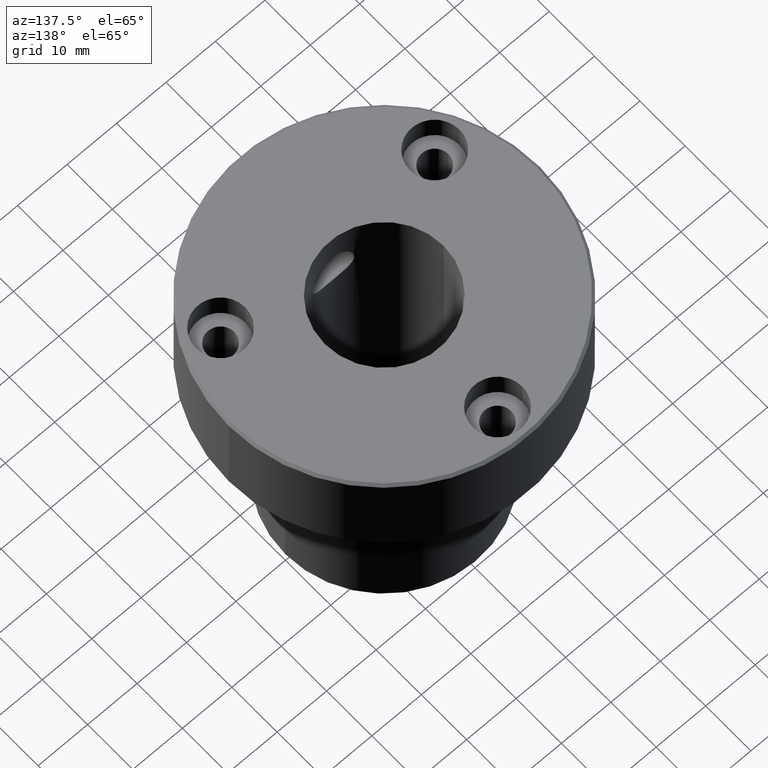
[diagram: clean part render]
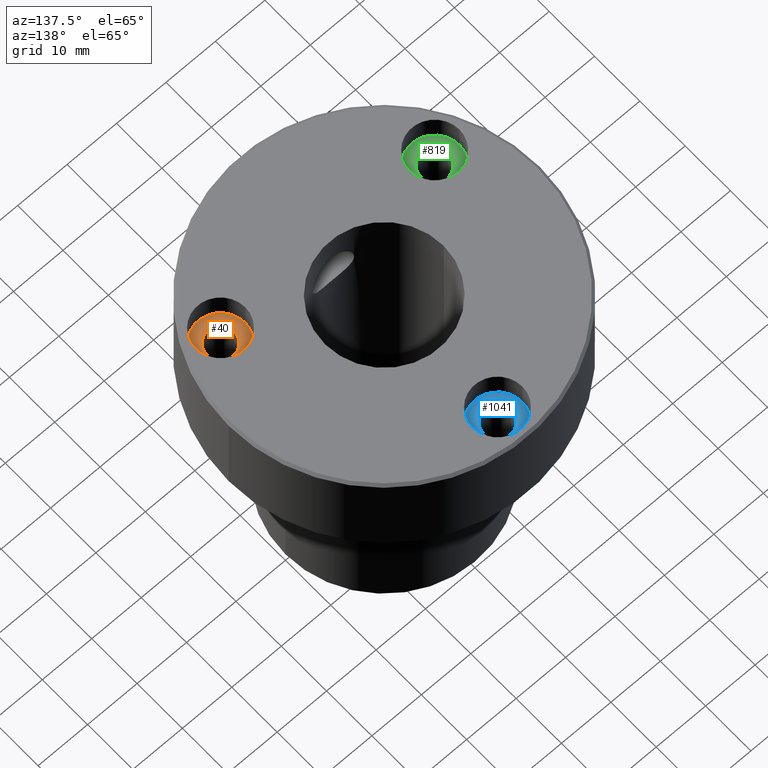
[diagram: same view with three faces highlighted in distinct colors, each labeled with its STEP entity id]
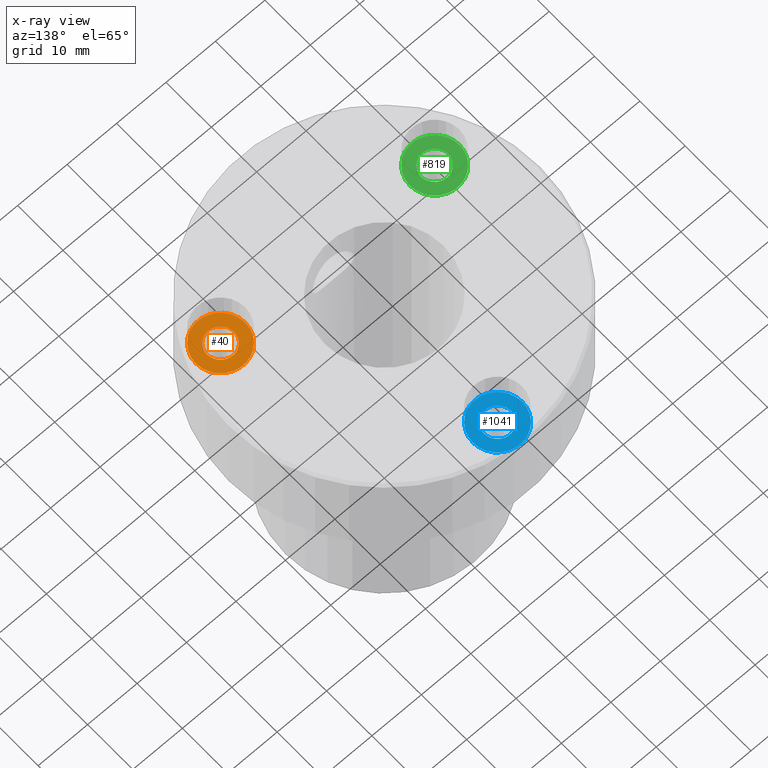
[diagram: x-ray of the same camera — body ghosted, the three highlighted faces saturated]
A machine part, auxiliary view with three faces highlighted in distinct colors.
The next image is the same camera in x-ray (body ghosted, the three faces saturated) — at least one of them is partly hidden behind the body in this view.
Their STEP definitions:

[orange] entity #40 — the highlighted planar face has unit normal (0, 0, -1).
#40 = ADVANCED_FACE ( 'NONE', ( #1101, #1032 ), #657, .F. ) ;
#49 = DIRECTION ( 'NONE',  ( -0.000000000000000000, -0.000000000000000000, 1.000000000000000000 ) ) ;
#51 = AXIS2_PLACEMENT_3D ( 'NONE', #177, #914, #245 ) ;
#177 = CARTESIAN_POINT ( 'NONE',  ( 24.40063509461092295, -12.50000000000010125, -5.400000000000000355 ) ) ;
#199 = AXIS2_PLACEMENT_3D ( 'NONE', #474, #849, #860 ) ;
#245 = DIRECTION ( 'NONE',  ( -1.000000000000000000, 0.000000000000000000, -0.000000000000000000 ) ) ;
#250 = DIRECTION ( 'NONE',  ( -0.000000000000000000, -0.000000000000000000, 1.000000000000000000 ) ) ;
#304 = CIRCLE ( 'NONE', #1007, 4.999999999999997335 ) ;
#307 = CARTESIAN_POINT ( 'NONE',  ( 21.65063509461091940, -12.50000000000010125, -5.400000000000000355 ) ) ;
#413 = VERTEX_POINT ( 'NONE', #956 ) ;
#438 = CARTESIAN_POINT ( 'NONE',  ( 16.65063509461091940, -12.50000000000010125, -5.400000000000000355 ) ) ;
#439 = DIRECTION ( 'NONE',  ( 1.000000000000000000, 0.000000000000000000, 0.000000000000000000 ) ) ;
#472 = EDGE_LOOP ( 'NONE', ( #938, #1087 ) ) ;
#474 = CARTESIAN_POINT ( 'NONE',  ( 21.65063509461091940, -12.50000000000010125, -5.400000000000000355 ) ) ;
#517 = CIRCLE ( 'NONE', #199, 2.750000000000005773 ) ;
#533 = EDGE_CURVE ( 'NONE', #837, #934, #622, .T. ) ;
#569 = ORIENTED_EDGE ( 'NONE', *, *, #736, .F. ) ;
#622 = CIRCLE ( 'NONE', #643, 4.999999999999997335 ) ;
#640 = VERTEX_POINT ( 'NONE', #1030 ) ;
#643 = AXIS2_PLACEMENT_3D ( 'NONE', #726, #49, #1084 ) ;
#657 = PLANE ( 'NONE',  #51 ) ;
#682 = CIRCLE ( 'NONE', #944, 2.750000000000005773 ) ;
#685 = EDGE_CURVE ( 'NONE', #413, #640, #682, .T. ) ;
#710 = EDGE_LOOP ( 'NONE', ( #1219, #569 ) ) ;
#726 = CARTESIAN_POINT ( 'NONE',  ( 21.65063509461091940, -12.50000000000010125, -5.400000000000000355 ) ) ;
#736 = EDGE_CURVE ( 'NONE', #640, #413, #517, .T. ) ;
#837 = VERTEX_POINT ( 'NONE', #1169 ) ;
#848 = EDGE_CURVE ( 'NONE', #934, #837, #304, .T. ) ;
#849 = DIRECTION ( 'NONE',  ( -0.000000000000000000, -0.000000000000000000, 1.000000000000000000 ) ) ;
#860 = DIRECTION ( 'NONE',  ( 1.000000000000000000, 0.000000000000000000, 0.000000000000000000 ) ) ;
#914 = DIRECTION ( 'NONE',  ( 0.000000000000000000, 0.000000000000000000, -1.000000000000000000 ) ) ;
#934 = VERTEX_POINT ( 'NONE', #438 ) ;
#938 = ORIENTED_EDGE ( 'NONE', *, *, #533, .T. ) ;
#944 = AXIS2_PLACEMENT_3D ( 'NONE', #1214, #250, #439 ) ;
#956 = CARTESIAN_POINT ( 'NONE',  ( 24.40063509461092295, -12.50000000000010125, -5.400000000000000355 ) ) ;
#1007 = AXIS2_PLACEMENT_3D ( 'NONE', #307, #1064, #1077 ) ;
#1030 = CARTESIAN_POINT ( 'NONE',  ( 18.90063509461091229, -12.50000000000010125, -5.400000000000000355 ) ) ;
#1032 = FACE_OUTER_BOUND ( 'NONE', #472, .T. ) ;
#1064 = DIRECTION ( 'NONE',  ( -0.000000000000000000, -0.000000000000000000, 1.000000000000000000 ) ) ;
#1077 = DIRECTION ( 'NONE',  ( 1.000000000000000000, 0.000000000000000000, 0.000000000000000000 ) ) ;
#1084 = DIRECTION ( 'NONE',  ( 1.000000000000000000, 0.000000000000000000, 0.000000000000000000 ) ) ;
#1087 = ORIENTED_EDGE ( 'NONE', *, *, #848, .T. ) ;
#1101 = FACE_BOUND ( 'NONE', #710, .T. ) ;
#1169 = CARTESIAN_POINT ( 'NONE',  ( 26.65063509461091584, -12.50000000000010125, -5.400000000000000355 ) ) ;
#1214 = CARTESIAN_POINT ( 'NONE',  ( 21.65063509461091940, -12.50000000000010125, -5.400000000000000355 ) ) ;
#1219 = ORIENTED_EDGE ( 'NONE', *, *, #685, .F. ) ;

[blue] entity #1041 — the highlighted planar face has unit normal (0, 0, -1).
#8 = EDGE_CURVE ( 'NONE', #85, #1043, #113, .T. ) ;
#16 = CARTESIAN_POINT ( 'NONE',  ( 4.999999999999999112, 25.00000000000001066, -5.400000000000000355 ) ) ;
#60 = DIRECTION ( 'NONE',  ( -0.000000000000000000, -0.000000000000000000, 1.000000000000000000 ) ) ;
#85 = VERTEX_POINT ( 'NONE', #155 ) ;
#98 = CIRCLE ( 'NONE', #917, 4.999999999999999112 ) ;
#113 = CIRCLE ( 'NONE', #1251, 2.750000000000005773 ) ;
#155 = CARTESIAN_POINT ( 'NONE',  ( 2.750000000000005773, 25.00000000000001066, -5.400000000000000355 ) ) ;
#162 = CARTESIAN_POINT ( 'NONE',  ( 0.000000000000000000, 25.00000000000001066, -5.400000000000000355 ) ) ;
#189 = DIRECTION ( 'NONE',  ( -1.000000000000000000, 0.000000000000000000, -0.000000000000000000 ) ) ;
#195 = EDGE_LOOP ( 'NONE', ( #1190, #949 ) ) ;
#217 = DIRECTION ( 'NONE',  ( -0.000000000000000000, -0.000000000000000000, 1.000000000000000000 ) ) ;
#269 = CARTESIAN_POINT ( 'NONE',  ( 0.000000000000000000, 25.00000000000001066, -5.400000000000000355 ) ) ;
#301 = DIRECTION ( 'NONE',  ( 0.000000000000000000, 0.000000000000000000, -1.000000000000000000 ) ) ;
#388 = EDGE_CURVE ( 'NONE', #1238, #976, #98, .T. ) ;
#470 = CARTESIAN_POINT ( 'NONE',  ( -2.750000000000005773, 25.00000000000001066, -5.400000000000000355 ) ) ;
#477 = FACE_OUTER_BOUND ( 'NONE', #869, .T. ) ;
#495 = AXIS2_PLACEMENT_3D ( 'NONE', #739, #60, #1019 ) ;
#580 = CIRCLE ( 'NONE', #495, 2.750000000000005773 ) ;
#600 = AXIS2_PLACEMENT_3D ( 'NONE', #1151, #301, #189 ) ;
#613 = CARTESIAN_POINT ( 'NONE',  ( -4.999999999999999112, 25.00000000000001066, -5.400000000000000355 ) ) ;
#637 = DIRECTION ( 'NONE',  ( 1.000000000000000000, 0.000000000000000000, 0.000000000000000000 ) ) ;
#654 = DIRECTION ( 'NONE',  ( -0.000000000000000000, -0.000000000000000000, 1.000000000000000000 ) ) ;
#681 = FACE_BOUND ( 'NONE', #195, .T. ) ;
#721 = EDGE_CURVE ( 'NONE', #1043, #85, #580, .T. ) ;
#739 = CARTESIAN_POINT ( 'NONE',  ( 0.000000000000000000, 25.00000000000001066, -5.400000000000000355 ) ) ;
#806 = ORIENTED_EDGE ( 'NONE', *, *, #388, .T. ) ;
#840 = CIRCLE ( 'NONE', #861, 4.999999999999999112 ) ;
#850 = PLANE ( 'NONE',  #600 ) ;
#861 = AXIS2_PLACEMENT_3D ( 'NONE', #1158, #217, #981 ) ;
#869 = EDGE_LOOP ( 'NONE', ( #806, #1014 ) ) ;
#917 = AXIS2_PLACEMENT_3D ( 'NONE', #269, #654, #1036 ) ;
#947 = EDGE_CURVE ( 'NONE', #976, #1238, #840, .T. ) ;
#949 = ORIENTED_EDGE ( 'NONE', *, *, #721, .F. ) ;
#976 = VERTEX_POINT ( 'NONE', #613 ) ;
#981 = DIRECTION ( 'NONE',  ( 1.000000000000000000, 0.000000000000000000, 0.000000000000000000 ) ) ;
#1014 = ORIENTED_EDGE ( 'NONE', *, *, #947, .T. ) ;
#1019 = DIRECTION ( 'NONE',  ( 1.000000000000000000, 0.000000000000000000, 0.000000000000000000 ) ) ;
#1036 = DIRECTION ( 'NONE',  ( 1.000000000000000000, 0.000000000000000000, 0.000000000000000000 ) ) ;
#1041 = ADVANCED_FACE ( 'NONE', ( #681, #477 ), #850, .F. ) ;
#1043 = VERTEX_POINT ( 'NONE', #470 ) ;
#1108 = DIRECTION ( 'NONE',  ( -0.000000000000000000, -0.000000000000000000, 1.000000000000000000 ) ) ;
#1151 = CARTESIAN_POINT ( 'NONE',  ( 2.750000000000005773, 25.00000000000001066, -5.400000000000000355 ) ) ;
#1158 = CARTESIAN_POINT ( 'NONE',  ( 0.000000000000000000, 25.00000000000001066, -5.400000000000000355 ) ) ;
#1190 = ORIENTED_EDGE ( 'NONE', *, *, #8, .F. ) ;
#1238 = VERTEX_POINT ( 'NONE', #16 ) ;
#1251 = AXIS2_PLACEMENT_3D ( 'NONE', #162, #1108, #637 ) ;

[green] entity #819 — the highlighted planar face has unit normal (0, 0, -1).
#6 = CARTESIAN_POINT ( 'NONE',  ( -16.65063509461100466, -12.49999999999995381, -5.400000000000000355 ) ) ;
#101 = AXIS2_PLACEMENT_3D ( 'NONE', #759, #855, #1245 ) ;
#117 = DIRECTION ( 'NONE',  ( -1.000000000000000000, 0.000000000000000000, -0.000000000000000000 ) ) ;
#157 = DIRECTION ( 'NONE',  ( -0.000000000000000000, -0.000000000000000000, 1.000000000000000000 ) ) ;
#203 = EDGE_CURVE ( 'NONE', #1038, #846, #1045, .T. ) ;
#235 = DIRECTION ( 'NONE',  ( 1.000000000000000000, 0.000000000000000000, 0.000000000000000000 ) ) ;
#326 = CIRCLE ( 'NONE', #666, 4.999999999999997335 ) ;
#329 = CARTESIAN_POINT ( 'NONE',  ( -18.90063509461099400, -12.49999999999995381, -5.400000000000000355 ) ) ;
#333 = CARTESIAN_POINT ( 'NONE',  ( -21.65063509461100111, -12.49999999999995381, -5.400000000000000355 ) ) ;
#349 = AXIS2_PLACEMENT_3D ( 'NONE', #329, #968, #117 ) ;
#403 = AXIS2_PLACEMENT_3D ( 'NONE', #333, #713, #235 ) ;
#424 = DIRECTION ( 'NONE',  ( 1.000000000000000000, 0.000000000000000000, 0.000000000000000000 ) ) ;
#492 = EDGE_LOOP ( 'NONE', ( #1240, #660 ) ) ;
#530 = EDGE_CURVE ( 'NONE', #846, #1038, #326, .T. ) ;
#549 = ORIENTED_EDGE ( 'NONE', *, *, #1200, .F. ) ;
#557 = ORIENTED_EDGE ( 'NONE', *, *, #1005, .F. ) ;
#601 = CARTESIAN_POINT ( 'NONE',  ( -21.65063509461100111, -12.49999999999995381, -5.400000000000000355 ) ) ;
#625 = CIRCLE ( 'NONE', #101, 2.750000000000005773 ) ;
#660 = ORIENTED_EDGE ( 'NONE', *, *, #203, .T. ) ;
#666 = AXIS2_PLACEMENT_3D ( 'NONE', #601, #157, #424 ) ;
#692 = PLANE ( 'NONE',  #349 ) ;
#698 = FACE_OUTER_BOUND ( 'NONE', #492, .T. ) ;
#706 = CIRCLE ( 'NONE', #1208, 2.750000000000005773 ) ;
#713 = DIRECTION ( 'NONE',  ( -0.000000000000000000, -0.000000000000000000, 1.000000000000000000 ) ) ;
#759 = CARTESIAN_POINT ( 'NONE',  ( -21.65063509461100111, -12.49999999999995381, -5.400000000000000355 ) ) ;
#803 = FACE_BOUND ( 'NONE', #1044, .T. ) ;
#819 = ADVANCED_FACE ( 'NONE', ( #803, #698 ), #692, .F. ) ;
#846 = VERTEX_POINT ( 'NONE', #6 ) ;
#855 = DIRECTION ( 'NONE',  ( -0.000000000000000000, -0.000000000000000000, 1.000000000000000000 ) ) ;
#871 = CARTESIAN_POINT ( 'NONE',  ( -21.65063509461100111, -12.49999999999995381, -5.400000000000000355 ) ) ;
#893 = CARTESIAN_POINT ( 'NONE',  ( -24.40063509461100821, -12.49999999999995381, -5.400000000000000355 ) ) ;
#951 = CARTESIAN_POINT ( 'NONE',  ( -26.65063509461099756, -12.49999999999995381, -5.400000000000000355 ) ) ;
#968 = DIRECTION ( 'NONE',  ( 0.000000000000000000, 0.000000000000000000, -1.000000000000000000 ) ) ;
#1005 = EDGE_CURVE ( 'NONE', #1223, #1119, #625, .T. ) ;
#1038 = VERTEX_POINT ( 'NONE', #951 ) ;
#1044 = EDGE_LOOP ( 'NONE', ( #549, #557 ) ) ;
#1045 = CIRCLE ( 'NONE', #403, 4.999999999999997335 ) ;
#1119 = VERTEX_POINT ( 'NONE', #1148 ) ;
#1148 = CARTESIAN_POINT ( 'NONE',  ( -18.90063509461099400, -12.49999999999995381, -5.400000000000000355 ) ) ;
#1159 = DIRECTION ( 'NONE',  ( -0.000000000000000000, -0.000000000000000000, 1.000000000000000000 ) ) ;
#1178 = DIRECTION ( 'NONE',  ( 1.000000000000000000, 0.000000000000000000, 0.000000000000000000 ) ) ;
#1200 = EDGE_CURVE ( 'NONE', #1119, #1223, #706, .T. ) ;
#1208 = AXIS2_PLACEMENT_3D ( 'NONE', #871, #1159, #1178 ) ;
#1223 = VERTEX_POINT ( 'NONE', #893 ) ;
#1240 = ORIENTED_EDGE ( 'NONE', *, *, #530, .T. ) ;
#1245 = DIRECTION ( 'NONE',  ( 1.000000000000000000, 0.000000000000000000, 0.000000000000000000 ) ) ;